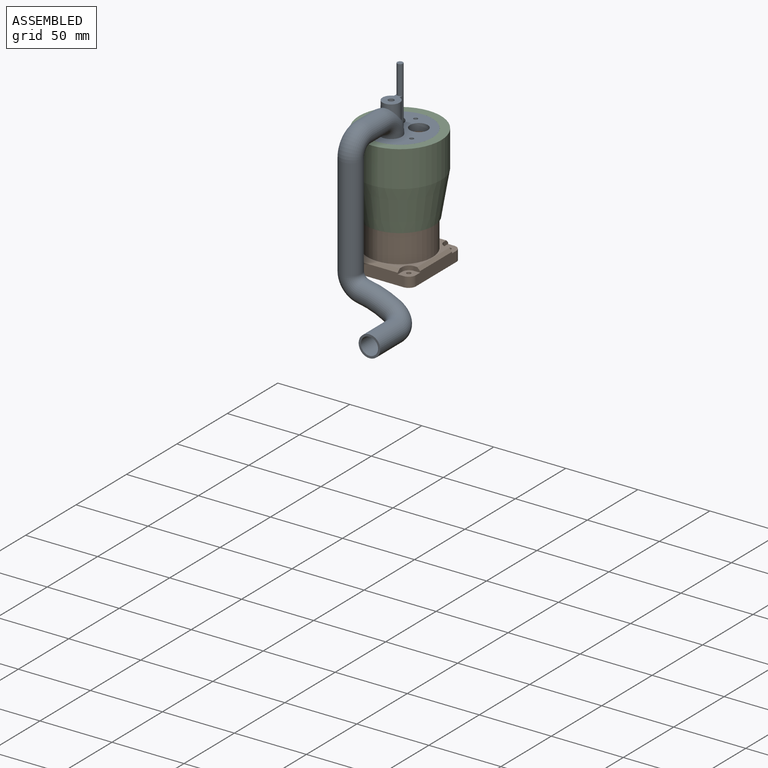
[diagram: assembled view]
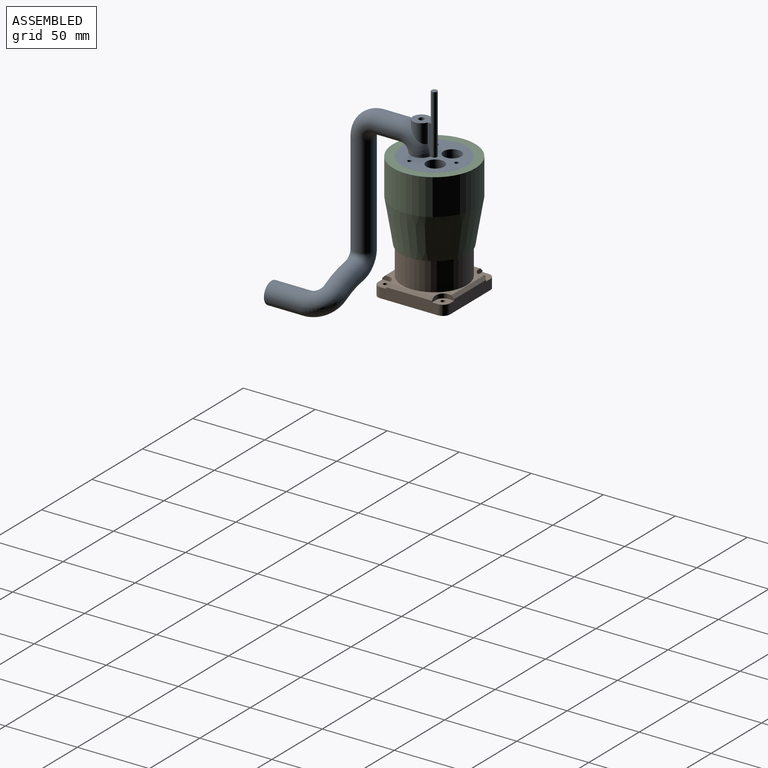
[diagram: assembled view, second angle]
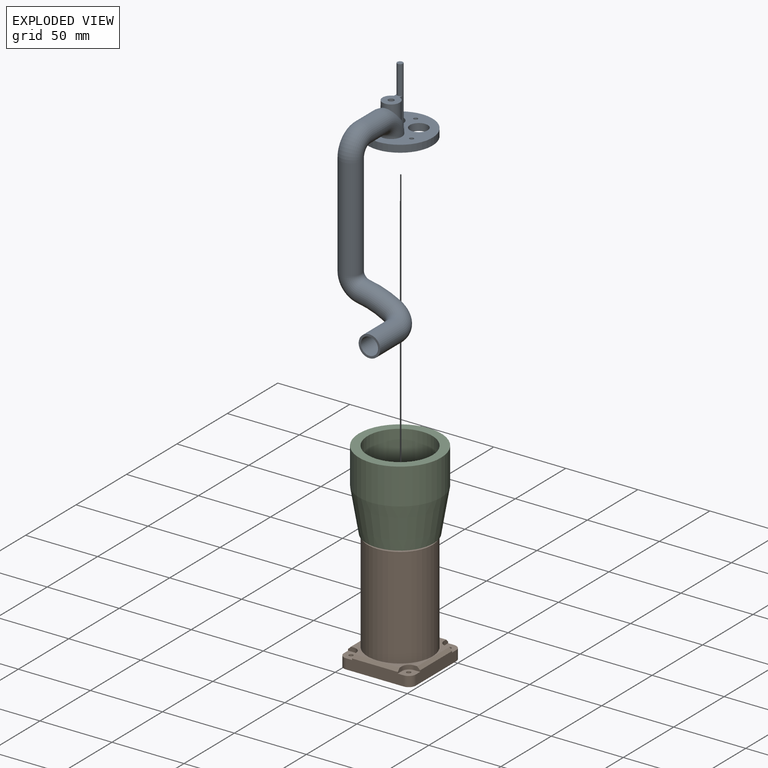
[diagram: exploded view]
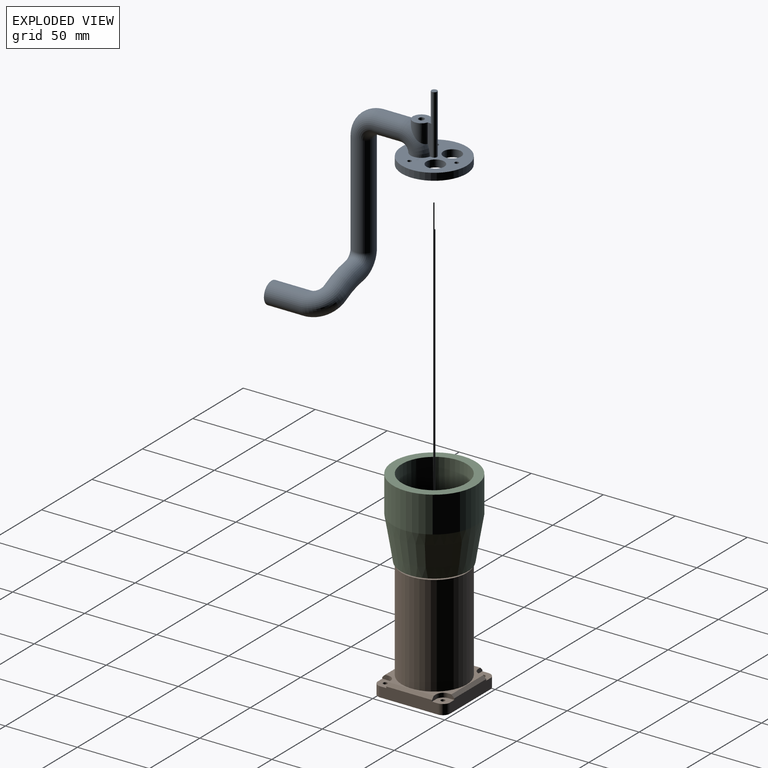
[diagram: exploded view, second angle]
ASSEMBLY  parts=3 mates=3
PART A: 33 faces, bbox 112.2x108.3x111.8 mm
  f0: plane 14.9x10.39mm, normal (0.87,0,0.5), area 106.3mm2, adj f2,f28,f29,f30,f31
  f1: torus R=11.48mm, axis (0.5,0,-0.87), area 642.9mm2, adj f2,f3,f16,f29,f31
  f2: cylinder r=6mm len=17.69mm, axis (0.87,0,0.5), area 283.4mm2, adj f0,f1,f29,f31
  f3: plane 45x38.97mm, normal (0.87,0,0.5), area 1143.1mm2, adj f1,f4,f6,f7,f8,f9,f10,f29
  f4: cylinder r=1.41mm len=5.74mm, axis (-0.87,0,-0.5), area 44.3mm2, adj f3,f11
  f5: cylinder r=6mm len=12.89mm, axis (-0.87,0,-0.5), area 188.5mm2, adj f11,f12
  f6: cylinder r=22.5mm len=45mm, axis (-0.87,0,-0.5), area 706.9mm2, adj f3,f11
  f7: cylinder r=6.18mm len=13.2mm, axis (-0.87,0,-0.5), area 194mm2, adj f3,f11
  f8: cylinder r=6.18mm len=13.2mm, axis (-0.87,0,-0.5), area 194mm2, adj f3,f11
  f9: cylinder r=1.41mm len=5.74mm, axis (-0.87,0,-0.5), area 44.3mm2, adj f3,f11
  f10: cylinder r=1.41mm len=5.74mm, axis (-0.87,0,-0.5), area 44.3mm2, adj f3,f11
  f11: plane 45x38.97mm, normal (-0.87,0,-0.5), area 1219mm2, adj f4,f5,f6,f7,f8,f9,f10
  f12: torus R=11.48mm, axis (0.5,0,-0.87), area 662.4mm2, adj f5,f13,f28
  f13: cylinder r=6mm len=17.12mm, axis (0,-1,0), area 645.4mm2, adj f12,f14
  f14: torus R=11.48mm, axis (0.5,0,-0.87), area 679.6mm2, adj f13,f15
  f15: cylinder r=6mm len=67.28mm, axis (-0.87,0,-0.5), area 2667.4mm2, adj f14,f19
  f16: cylinder r=7.5mm len=17.12mm, axis (0,-1,0), area 806.8mm2, adj f1,f17
  f17: torus R=11.48mm, axis (0.5,0,-0.87), area 849.4mm2, adj f16,f18
  f18: cylinder r=7.5mm len=68.78mm, axis (-0.87,0,-0.5), area 3334.3mm2, adj f17,f21
  f19: torus R=10.88mm, axis (0,-1,0), area 580.2mm2, adj f15,f20
  f20: torus R=59.22mm, axis (0,1,0), area 770.2mm2, adj f19,f23
  f21: torus R=10.88mm, axis (0,-1,0), area 725.3mm2, adj f18,f22
  f22: torus R=59.22mm, axis (0,1,0), area 962.7mm2, adj f21,f24
  f23: torus R=11.86mm, axis (-1,0,-0.02), area 702.5mm2, adj f20,f25
  f24: torus R=11.86mm, axis (-1,0,-0.02), area 878.1mm2, adj f22,f26
  f25: cylinder r=6mm len=25mm, axis (0,1,0), area 942.5mm2, adj f23,f27
  f26: cylinder r=7.5mm len=25mm, axis (0,1,0), area 1178.1mm2, adj f24,f27
  f27: plane 15x15mm, normal (0,-1,0), area 63.6mm2, adj f25,f26
  f28: cylinder r=2mm len=10.55mm, axis (0.87,0,0.5), area 102.9mm2, adj f0,f12
  f29: plane 18.19x10.5mm, normal (-0.5,0,0.87), area 60.3mm2, adj f0,f1,f2,f3,f30
  f30: cylinder r=2mm len=37.51mm, axis (-0.87,0,-0.5), area 383.3mm2, adj f0,f3,f29,f31,f32
  f31: plane 18.19x10.5mm, normal (0.5,0,-0.87), area 60.3mm2, adj f0,f1,f2,f3,f30
  f32: plane 4x3.46mm, normal (0.87,0,0.5), area 12.6mm2, adj f30
PART B: 44 faces, bbox 50x50x80 mm
  f0: plane 40x8mm, normal (1,0,0), area 311.7mm2, adj f8,f16,f17,f26,f28,f32,f33,f40
  f1: plane 40x8mm, normal (0,-1,0), area 311.7mm2, adj f8,f16,f19,f31,f33,f37,f38,f41
  f2: plane 40x8mm, normal (-1,0,0), area 311.7mm2, adj f8,f18,f19,f22,f23,f36,f38,f43
  f3: plane 40x8mm, normal (0,1,0), area 311.7mm2, adj f8,f17,f18,f21,f23,f27,f28,f42
  f4: plane 45x45mm, normal (0,0,1), area 1219mm2, adj f9,f10,f11,f12,f13,f14,f15
  f5: plane 35x35mm, normal (0,0,-1), area 590.7mm2, adj f6,f10,f11,f12,f13,f14,f15
  f6: cylinder r=17.5mm len=75mm, axis (0,0,-1), area 8246.7mm2, adj f5,f8
  f7: plane 46x46mm, normal (0,0,1), area 343.8mm2, adj f9,f20,f21,f22,f25,f26,f27,f30
  f8: plane 50x50mm, normal (0,0,-1), area 1488.2mm2, adj f0,f1,f2,f3,f6,f16,f17,f18
  f9: cylinder r=22.5mm len=70mm, axis (0,0,-1), area 9896mm2, adj f4,f7
  f10: cylinder r=6.18mm len=12.35mm, axis (0,0,1), area 194mm2, adj f4,f5
  f11: cylinder r=6.18mm len=12.35mm, axis (0,0,1), area 194mm2, adj f4,f5
  f12: cylinder r=6mm len=12mm, axis (0,0,1), area 188.5mm2, adj f4,f5
  f13: cylinder r=1.41mm len=5mm, axis (0,0,1), area 44.3mm2, adj f4,f5
  f14: cylinder r=1.41mm len=5mm, axis (0,0,1), area 44.3mm2, adj f4,f5
  f15: cylinder r=1.41mm len=5mm, axis (0,0,1), area 44.3mm2, adj f4,f5
  f16: cylinder r=5mm len=7mm, axis (0,0,1), area 55mm2, adj f0,f1,f8,f33
  f17: cylinder r=5mm len=7mm, axis (0,0,1), area 55mm2, adj f0,f3,f8,f28
  f18: cylinder r=5mm len=7mm, axis (0,0,1), area 55mm2, adj f2,f3,f8,f23
  f19: cylinder r=5mm len=7mm, axis (0,0,1), area 55mm2, adj f1,f2,f8,f38
  f20: cylinder r=5mm len=5mm, axis (0,0,1), area 23.6mm2, adj f7,f21,f22,f23
  f21: plane 4.13x3mm, normal (-1,0,0), area 10.4mm2, adj f3,f7,f20,f23,f42
  f22: plane 4.13x3mm, normal (0,1,0), area 10.4mm2, adj f2,f7,f20,f23,f43
  f23: plane 9.13x9.13mm, normal (0,0,1), area 65.5mm2, adj f2,f3,f18,f20,f21,f22,f24
  f24: cylinder r=1.5mm len=7mm, axis (0,0,1), area 66mm2, adj f8,f23
  f25: cylinder r=5mm len=5mm, axis (0,0,1), area 23.6mm2, adj f7,f26,f27,f28
  f26: plane 4.13x3mm, normal (0,1,0), area 10.4mm2, adj f0,f7,f25,f28,f40
  f27: plane 4.13x3mm, normal (1,0,0), area 10.4mm2, adj f3,f7,f25,f28,f42
  f28: plane 9.13x9.13mm, normal (0,0,1), area 65.5mm2, adj f0,f3,f17,f25,f26,f27,f29
  f29: cylinder r=1.5mm len=7mm, axis (0,0,1), area 66mm2, adj f8,f28
  f30: cylinder r=5mm len=5mm, axis (0,0,1), area 23.6mm2, adj f7,f31,f32,f33
  f31: plane 4.13x3mm, normal (1,0,0), area 10.4mm2, adj f1,f7,f30,f33,f41
  f32: plane 4.13x3mm, normal (0,-1,0), area 10.4mm2, adj f0,f7,f30,f33,f40
  f33: plane 9.13x9.13mm, normal (0,0,1), area 65.5mm2, adj f0,f1,f16,f30,f31,f32,f34
  f34: cylinder r=1.5mm len=7mm, axis (0,0,1), area 66mm2, adj f8,f33
  f35: cylinder r=5mm len=5mm, axis (0,0,1), area 23.6mm2, adj f7,f36,f37,f38
  f36: plane 4.13x3mm, normal (0,-1,0), area 10.4mm2, adj f2,f7,f35,f38,f43
  f37: plane 4.13x3mm, normal (-1,0,0), area 10.4mm2, adj f1,f7,f35,f38,f41
  f38: plane 9.13x9.13mm, normal (0,0,1), area 65.5mm2, adj f1,f2,f19,f35,f36,f37,f39
  f39: cylinder r=1.5mm len=7mm, axis (0,0,1), area 66mm2, adj f8,f38
  f40: plane 31.75x2mm, normal (0.71,0,0.71), area 89.8mm2, adj f0,f7,f26,f32
  f41: plane 31.75x2mm, normal (0,-0.71,0.71), area 89.8mm2, adj f1,f7,f31,f37
  f42: plane 31.75x2mm, normal (0,0.71,0.71), area 89.8mm2, adj f3,f7,f21,f27
  f43: plane 31.75x2mm, normal (-0.71,0,0.71), area 89.8mm2, adj f2,f7,f22,f36
PART C: 5 faces, bbox 57x57x55 mm
  f0: cylinder r=22.5mm len=55mm, axis (0,0,1), area 7775.4mm2, adj f2,f3
  f1: cylinder r=28.5mm len=57mm, axis (0,0,1), area 4476.8mm2, adj f2,f4
  f2: plane 57x57mm, normal (0,0,1), area 961.3mm2, adj f0,f1
  f3: plane 47x47mm, normal (0,0,-1), area 144.5mm2, adj f0,f4
  f4: cone r=28.5mm half-angle=9.5deg, axis (0,0,1), area 4968.5mm2, adj f1,f3
PLACE A rot(axis=(0,-1,0),60deg) t=(76.56,53.87,14.5)mm
PLACE B t=(76.56,53.87,14.5)mm
PLACE C rot(axis=(0,0,1),0.4deg) t=(76.37,53.87,14.5)mm
MATE revolute B.f11 <-> A.f8  axis (0,0,-1) through (68.17,33,149.5)mm
MATE revolute C.f0 <-> A.f6  axis (0,0,1) through (76.56,26.37,154.5)mm
MATE revolute A.f6 <-> B.f9  axis (0,0,1) through (76.56,26.37,149.5)mm
